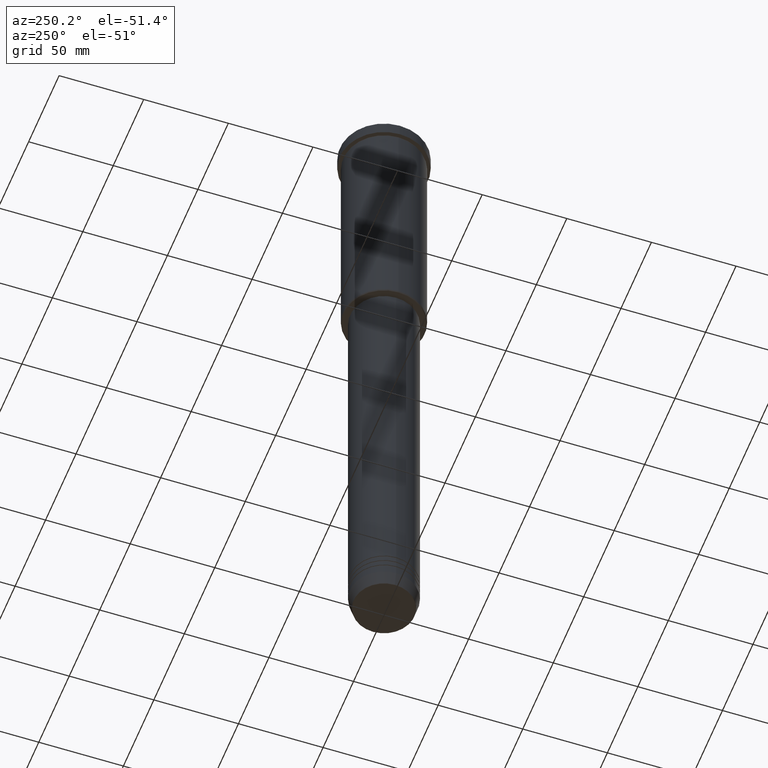
[diagram: clean part render]
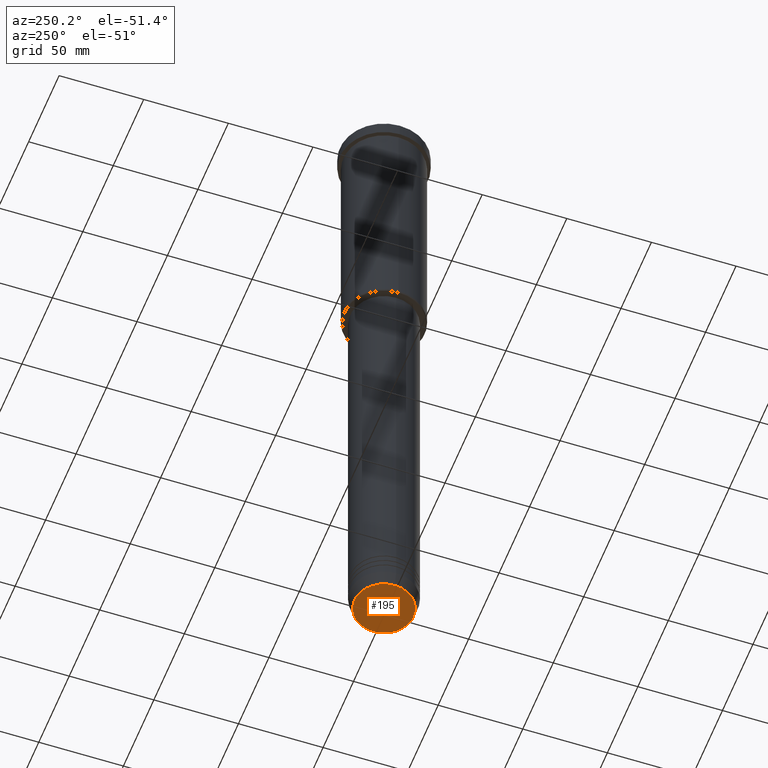
[diagram: same view with one face highlighted and labeled with its STEP entity id]
A machine part, auxiliary view. The second image highlights one B-rep face of the part: STEP entity #195.
In plain terms, the highlighted planar face has unit normal (0, -0, 1).
Its self-contained STEP definition (entity closure, byte-faithful):
#32 = DIRECTION ( 'NONE',  ( 1.000000000000000000, 0.000000000000000000, 0.000000000000000000 ) ) ;
#84 = VERTEX_POINT ( 'NONE', #682 ) ;
#122 = DIRECTION ( 'NONE',  ( 0.000000000000000000, 0.000000000000000000, -1.000000000000000000 ) ) ;
#195 = ADVANCED_FACE ( 'NONE', ( #792 ), #423, .F. ) ;
#260 = EDGE_CURVE ( 'NONE', #445, #84, #450, .T. ) ;
#265 = DIRECTION ( 'NONE',  ( 1.000000000000000000, 0.000000000000000000, 0.000000000000000000 ) ) ;
#338 = DIRECTION ( 'NONE',  ( 0.000000000000000000, 0.000000000000000000, -1.000000000000000000 ) ) ;
#378 = AXIS2_PLACEMENT_3D ( 'NONE', #719, #122, #32 ) ;
#423 = PLANE ( 'NONE',  #654 ) ;
#445 = VERTEX_POINT ( 'NONE', #562 ) ;
#450 = CIRCLE ( 'NONE', #874, 17.47274296656153680 ) ;
#537 = DIRECTION ( 'NONE',  ( 1.000000000000000000, 0.000000000000000000, 0.000000000000000000 ) ) ;
#562 = CARTESIAN_POINT ( 'NONE',  ( 17.47274296656153680, 0.000000000000000000, -400.0000000000000000 ) ) ;
#654 = AXIS2_PLACEMENT_3D ( 'NONE', #1055, #1173, #537 ) ;
#682 = CARTESIAN_POINT ( 'NONE',  ( -17.47274296656153680, 2.169366823916868503E-15, -400.0000000000000000 ) ) ;
#704 = CIRCLE ( 'NONE', #378, 17.47274296656153680 ) ;
#713 = CARTESIAN_POINT ( 'NONE',  ( 0.000000000000000000, 0.000000000000000000, -400.0000000000000000 ) ) ;
#719 = CARTESIAN_POINT ( 'NONE',  ( 0.000000000000000000, 0.000000000000000000, -400.0000000000000000 ) ) ;
#721 = ORIENTED_EDGE ( 'NONE', *, *, #920, .T. ) ;
#792 = FACE_OUTER_BOUND ( 'NONE', #890, .T. ) ;
#874 = AXIS2_PLACEMENT_3D ( 'NONE', #713, #338, #265 ) ;
#890 = EDGE_LOOP ( 'NONE', ( #952, #721 ) ) ;
#920 = EDGE_CURVE ( 'NONE', #84, #445, #704, .T. ) ;
#952 = ORIENTED_EDGE ( 'NONE', *, *, #260, .T. ) ;
#1055 = CARTESIAN_POINT ( 'NONE',  ( 0.000000000000000000, 0.000000000000000000, -400.0000000000000000 ) ) ;
#1173 = DIRECTION ( 'NONE',  ( 0.000000000000000000, -0.000000000000000000, 1.000000000000000000 ) ) ;